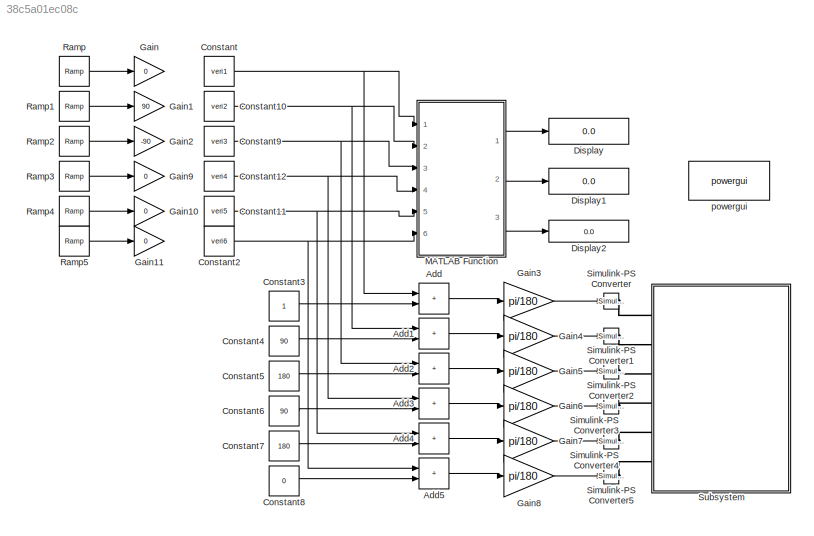
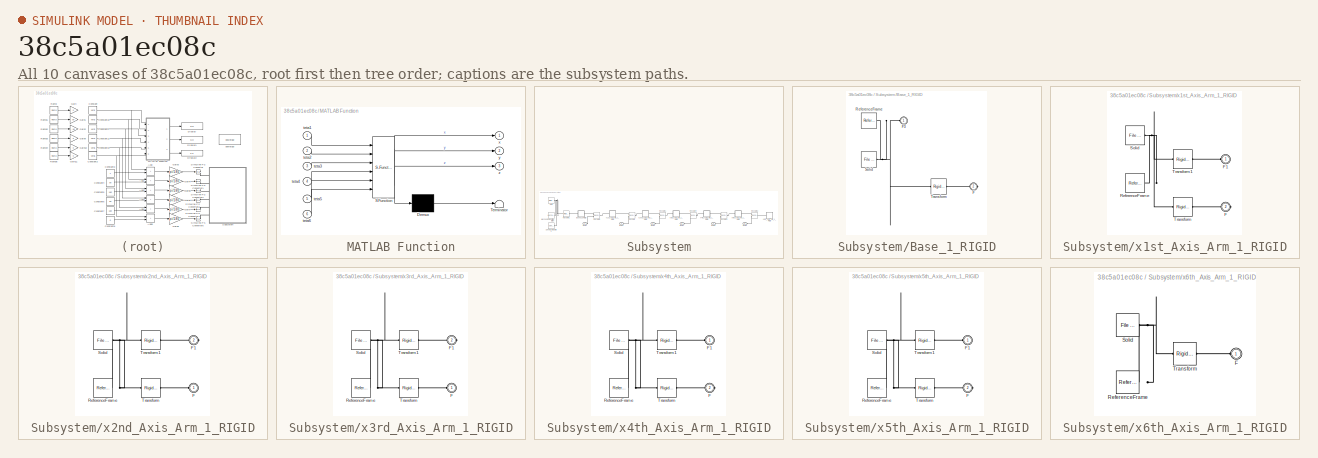
[diagram: thumbnail index - all 10 canvases of the model, root first then tree order]
MODEL slx_38c5a01ec08c
KIND model
CONFIG AbsTol = auto
CONFIG EnableMultiTasking = off
CONFIG FixedStep = auto
CONFIG MaxStep = auto
CONFIG MinStep = auto
CONFIG RelTol = 1e-3
CONFIG SampleTimeConstraint = Unconstrained
CONFIG SolverName = VariableStepAuto
CONFIG StartTime = 0.0
CONFIG StopTime = 0
WORKSPACE source: external: MATLAB File  (data not in archive)
BLOCK [Sum] Add
  IconShape = rectangular
  Ports = [2, 1]
BLOCK [Sum] Add1
  IconShape = rectangular
  Ports = [2, 1]
BLOCK [Sum] Add2
  IconShape = rectangular
  Ports = [2, 1]
BLOCK [Sum] Add3
  IconShape = rectangular
  Ports = [2, 1]
BLOCK [Sum] Add4
  IconShape = rectangular
  Ports = [2, 1]
BLOCK [Sum] Add5
  IconShape = rectangular
  Ports = [2, 1]
BLOCK [Constant] Constant
  Value = veri1
BLOCK [Constant] Constant10
  Value = veri2
BLOCK [Constant] Constant11
  Value = veri5
BLOCK [Constant] Constant12
  Value = veri4
BLOCK [Constant] Constant2
  Value = veri6
BLOCK [Constant] Constant3
BLOCK [Constant] Constant4
  Value = 90
BLOCK [Constant] Constant5
  Value = 180
BLOCK [Constant] Constant6
  Value = 90
BLOCK [Constant] Constant7
  Value = 180
BLOCK [Constant] Constant8
  Value = 0
BLOCK [Constant] Constant9
  Value = veri3
BLOCK [Display] Display
  Decimation = 1
  Ports = [1]
BLOCK [Display] Display1
  Decimation = 1
  Ports = [1]
BLOCK [Display] Display2
  Decimation = 1
  Ports = [1]
BLOCK [Gain] Gain
  Gain = 0
BLOCK [Gain] Gain1
  Gain = 90
BLOCK [Gain] Gain10
  Gain = 0
BLOCK [Gain] Gain11
  Gain = 0
BLOCK [Gain] Gain2
  Gain = -90
BLOCK [Gain] Gain3
  Gain = pi/180
BLOCK [Gain] Gain4
  Gain = pi/180
BLOCK [Gain] Gain5
  Gain = pi/180
BLOCK [Gain] Gain6
  Gain = pi/180
BLOCK [Gain] Gain7
  Gain = pi/180
BLOCK [Gain] Gain8
  Gain = pi/180
BLOCK [Gain] Gain9
  Gain = 0
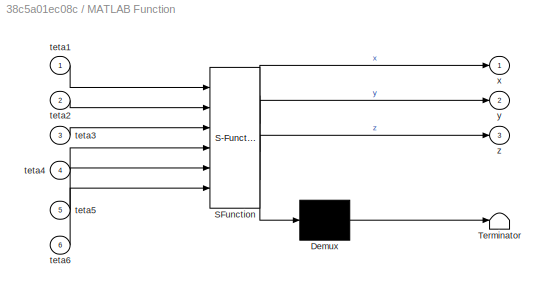
BLOCK [SubSystem] MATLAB Function
  ErrorFcn = Stateflow.Translate.translate
  PermitHierarchicalResolution = ExplicitOnly
  Ports = [6, 3]
  RequestExecContextInheritance = off
  SFBlockType = MATLAB Function
  TreatAsAtomicUnit = on
BLOCK [Demux] MATLAB Function/ Demux 
  Outputs = 1
  Ports = [1, 1]
BLOCK [S-Function] MATLAB Function/ SFunction 
  EnableBusSupport = on
  FunctionName = sf_sfun
  PortCounts = [6 4]
  Ports = [6, 4]
  SFcnIsStateOwnerBlock = off
  SFunctionDeploymentMode = off
  Tag = Stateflow S-Function 2
BLOCK [Terminator] MATLAB Function/ Terminator 
BLOCK [Inport] MATLAB Function/teta1
BLOCK [Inport] MATLAB Function/teta2
  Port = 2
BLOCK [Inport] MATLAB Function/teta3
  Port = 3
BLOCK [Inport] MATLAB Function/teta4
  Port = 4
BLOCK [Inport] MATLAB Function/teta5
  Port = 5
BLOCK [Inport] MATLAB Function/teta6
  Port = 6
BLOCK [Outport] MATLAB Function/x
BLOCK [Outport] MATLAB Function/y
  Port = 2
BLOCK [Outport] MATLAB Function/z
  Port = 3
BLOCK [Reference] Ramp  REF=simulink/Sources/Ramp
  Ports = [0, 1]
  SourceBlock = simulink/Sources/Ramp
  SourceProductBaseCode = SL
  SourceType = Ramp
BLOCK [Reference] Ramp1  REF=simulink/Sources/Ramp
  Ports = [0, 1]
  SourceBlock = simulink/Sources/Ramp
  SourceProductBaseCode = SL
  SourceType = Ramp
BLOCK [Reference] Ramp2  REF=simulink/Sources/Ramp
  Ports = [0, 1]
  SourceBlock = simulink/Sources/Ramp
  SourceProductBaseCode = SL
  SourceType = Ramp
BLOCK [Reference] Ramp3  REF=simulink/Sources/Ramp
  Ports = [0, 1]
  SourceBlock = simulink/Sources/Ramp
  SourceProductBaseCode = SL
  SourceType = Ramp
BLOCK [Reference] Ramp4  REF=simulink/Sources/Ramp
  Ports = [0, 1]
  SourceBlock = simulink/Sources/Ramp
  SourceProductBaseCode = SL
  SourceType = Ramp
BLOCK [Reference] Ramp5  REF=simulink/Sources/Ramp
  Ports = [0, 1]
  SourceBlock = simulink/Sources/Ramp
  SourceProductBaseCode = SL
  SourceType = Ramp
BLOCK [Reference] Simulink-PS Converter  REF=nesl_utility/Simulink-PS
Converter
  Ports = [1, 0, 0, 0, 0, 0, 1]
  SourceBlock = nesl_utility/Simulink-PS\nConverter
  SourceProductBaseCode = PW,SS
  SourceType = Simulink-PS\nConverter
BLOCK [Reference] Simulink-PS Converter1  REF=nesl_utility/Simulink-PS
Converter
  Ports = [1, 0, 0, 0, 0, 0, 1]
  SourceBlock = nesl_utility/Simulink-PS\nConverter
  SourceProductBaseCode = PW,SS
  SourceType = Simulink-PS\nConverter
BLOCK [Reference] Simulink-PS Converter2  REF=nesl_utility/Simulink-PS
Converter
  Ports = [1, 0, 0, 0, 0, 0, 1]
  SourceBlock = nesl_utility/Simulink-PS\nConverter
  SourceProductBaseCode = PW,SS
  SourceType = Simulink-PS\nConverter
BLOCK [Reference] Simulink-PS Converter3  REF=nesl_utility/Simulink-PS
Converter
  Ports = [1, 0, 0, 0, 0, 0, 1]
  SourceBlock = nesl_utility/Simulink-PS\nConverter
  SourceProductBaseCode = PW,SS
  SourceType = Simulink-PS\nConverter
BLOCK [Reference] Simulink-PS Converter4  REF=nesl_utility/Simulink-PS
Converter
  Ports = [1, 0, 0, 0, 0, 0, 1]
  SourceBlock = nesl_utility/Simulink-PS\nConverter
  SourceProductBaseCode = PW,SS
  SourceType = Simulink-PS\nConverter
BLOCK [Reference] Simulink-PS Converter5  REF=nesl_utility/Simulink-PS
Converter
  Ports = [1, 0, 0, 0, 0, 0, 1]
  SourceBlock = nesl_utility/Simulink-PS\nConverter
  SourceProductBaseCode = PW,SS
  SourceType = Simulink-PS\nConverter
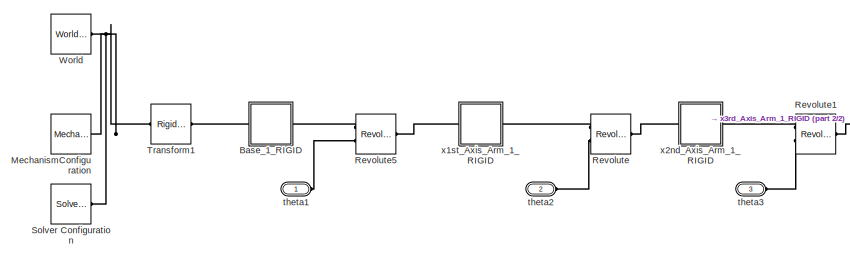
[diagram: Subsystem - part 1/2, left side, full height]
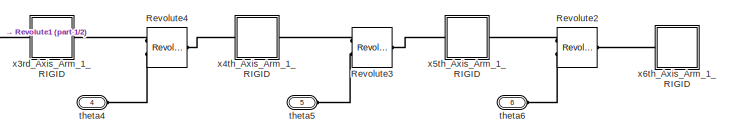
[diagram: Subsystem - part 2/2, middle right region]
BLOCK [SubSystem] Subsystem
  Ports = [0, 0, 0, 0, 0, 6]
  RequestExecContextInheritance = off
BLOCK [SubSystem] Subsystem/Base_1_RIGID
  Ports = [0, 0, 0, 0, 0, 1, 1]
  RequestExecContextInheritance = off
BLOCK [PMIOPort] Subsystem/Base_1_RIGID/F
  Port = 2
  Side = Right
BLOCK [PMIOPort] Subsystem/Base_1_RIGID/F3
  Side = Left
BLOCK [Reference] Subsystem/Base_1_RIGID/ReferenceFrame  REF=sm_lib/Frames and
Transforms/Reference
Frame
  Ports = [0, 0, 0, 0, 0, 0, 1]
  SourceBlock = sm_lib/Frames and\nTransforms/Reference\nFrame
  SourceProductBaseCode = MS
  SourceType = Reference\nFrame
BLOCK [Reference] Subsystem/Base_1_RIGID/Solid  REF=sm_lib/Body Elements/File Solid
  Ports = [0, 0, 0, 0, 0, 0, 1]
  SourceBlock = sm_lib/Body Elements/File Solid
  SourceProductBaseCode = MS
  SourceType = File Solid
BLOCK [Reference] Subsystem/Base_1_RIGID/Transform  REF=sm_lib/Frames and
Transforms/Rigid
Transform
  Ports = [0, 0, 0, 0, 0, 1, 1]
  SourceBlock = sm_lib/Frames and\nTransforms/Rigid\nTransform
  SourceProductBaseCode = MS
  SourceType = Rigid\nTransform
BLOCK [Reference] Subsystem/MechanismConfiguration  REF=sm_lib/Utilities/Mechanism
Configuration
  Ports = [0, 0, 0, 0, 0, 0, 1]
  SourceBlock = sm_lib/Utilities/Mechanism\nConfiguration
  SourceProductBaseCode = MS
  SourceType = Mechanism\nConfiguration
BLOCK [Reference] Subsystem/Revolute  REF=sm_lib/Joints/Revolute Joint
  Ports = [0, 0, 0, 0, 0, 2, 1]
  SourceBlock = sm_lib/Joints/Revolute Joint
  SourceProductBaseCode = MS
  SourceType = Revolute Joint
BLOCK [Reference] Subsystem/Revolute1  REF=sm_lib/Joints/Revolute Joint
  Ports = [0, 0, 0, 0, 0, 2, 1]
  SourceBlock = sm_lib/Joints/Revolute Joint
  SourceProductBaseCode = MS
  SourceType = Revolute Joint
BLOCK [Reference] Subsystem/Revolute2  REF=sm_lib/Joints/Revolute Joint
  Ports = [0, 0, 0, 0, 0, 2, 1]
  SourceBlock = sm_lib/Joints/Revolute Joint
  SourceProductBaseCode = MS
  SourceType = Revolute Joint
BLOCK [Reference] Subsystem/Revolute3  REF=sm_lib/Joints/Revolute Joint
  Ports = [0, 0, 0, 0, 0, 2, 1]
  SourceBlock = sm_lib/Joints/Revolute Joint
  SourceProductBaseCode = MS
  SourceType = Revolute Joint
BLOCK [Reference] Subsystem/Revolute4  REF=sm_lib/Joints/Revolute Joint
  Ports = [0, 0, 0, 0, 0, 2, 1]
  SourceBlock = sm_lib/Joints/Revolute Joint
  SourceProductBaseCode = MS
  SourceType = Revolute Joint
BLOCK [Reference] Subsystem/Revolute5  REF=sm_lib/Joints/Revolute Joint
  Ports = [0, 0, 0, 0, 0, 2, 1]
  SourceBlock = sm_lib/Joints/Revolute Joint
  SourceProductBaseCode = MS
  SourceType = Revolute Joint
BLOCK [Reference] Subsystem/Solver Configuration  REF=nesl_utility/Solver
Configuration
  Ports = [0, 0, 0, 0, 0, 0, 1]
  SourceBlock = nesl_utility/Solver\nConfiguration
  SourceProductBaseCode = PW,SS
  SourceType = Solver\nConfiguration
BLOCK [Reference] Subsystem/Transform1  REF=sm_lib/Frames and
Transforms/Rigid
Transform
  Ports = [0, 0, 0, 0, 0, 1, 1]
  SourceBlock = sm_lib/Frames and\nTransforms/Rigid\nTransform
  SourceProductBaseCode = MS
  SourceType = Rigid\nTransform
BLOCK [Reference] Subsystem/World  REF=sm_lib/Frames and
Transforms/World Frame
  Ports = [0, 0, 0, 0, 0, 0, 1]
  SourceBlock = sm_lib/Frames and\nTransforms/World Frame
  SourceProductBaseCode = MS
  SourceType = World Frame
BLOCK [PMIOPort] Subsystem/theta1
  Side = Left
BLOCK [PMIOPort] Subsystem/theta2
  Port = 2
  Side = Left
BLOCK [PMIOPort] Subsystem/theta3
  Port = 3
  Side = Left
BLOCK [PMIOPort] Subsystem/theta4
  Port = 4
  Side = Left
BLOCK [PMIOPort] Subsystem/theta5
  Port = 5
  Side = Left
BLOCK [PMIOPort] Subsystem/theta6
  Port = 6
  Side = Left
BLOCK [SubSystem] Subsystem/x1st_Axis_Arm_1_RIGID
  Ports = [0, 0, 0, 0, 0, 1, 1]
  RequestExecContextInheritance = off
BLOCK [PMIOPort] Subsystem/x1st_Axis_Arm_1_RIGID/F
  Port = 2
  Side = Right
BLOCK [PMIOPort] Subsystem/x1st_Axis_Arm_1_RIGID/F1
  Side = Left
BLOCK [Reference] Subsystem/x1st_Axis_Arm_1_RIGID/ReferenceFrame  REF=sm_lib/Frames and
Transforms/Reference
Frame
  Ports = [0, 0, 0, 0, 0, 0, 1]
  SourceBlock = sm_lib/Frames and\nTransforms/Reference\nFrame
  SourceProductBaseCode = MS
  SourceType = Reference\nFrame
BLOCK [Reference] Subsystem/x1st_Axis_Arm_1_RIGID/Solid  REF=sm_lib/Body Elements/File Solid
  Ports = [0, 0, 0, 0, 0, 0, 1]
  SourceBlock = sm_lib/Body Elements/File Solid
  SourceProductBaseCode = MS
  SourceType = File Solid
BLOCK [Reference] Subsystem/x1st_Axis_Arm_1_RIGID/Transform  REF=sm_lib/Frames and
Transforms/Rigid
Transform
  Ports = [0, 0, 0, 0, 0, 1, 1]
  SourceBlock = sm_lib/Frames and\nTransforms/Rigid\nTransform
  SourceProductBaseCode = MS
  SourceType = Rigid\nTransform
BLOCK [Reference] Subsystem/x1st_Axis_Arm_1_RIGID/Transform1  REF=sm_lib/Frames and
Transforms/Rigid
Transform
  Ports = [0, 0, 0, 0, 0, 1, 1]
  SourceBlock = sm_lib/Frames and\nTransforms/Rigid\nTransform
  SourceProductBaseCode = MS
  SourceType = Rigid\nTransform
BLOCK [SubSystem] Subsystem/x2nd_Axis_Arm_1_RIGID
  Ports = [0, 0, 0, 0, 0, 1, 1]
  RequestExecContextInheritance = off
BLOCK [PMIOPort] Subsystem/x2nd_Axis_Arm_1_RIGID/F
  Side = Left
BLOCK [PMIOPort] Subsystem/x2nd_Axis_Arm_1_RIGID/F1
  Port = 2
  Side = Right
BLOCK [Reference] Subsystem/x2nd_Axis_Arm_1_RIGID/ReferenceFrame  REF=sm_lib/Frames and
Transforms/Reference
Frame
  Ports = [0, 0, 0, 0, 0, 0, 1]
  SourceBlock = sm_lib/Frames and\nTransforms/Reference\nFrame
  SourceProductBaseCode = MS
  SourceType = Reference\nFrame
BLOCK [Reference] Subsystem/x2nd_Axis_Arm_1_RIGID/Solid  REF=sm_lib/Body Elements/File Solid
  Ports = [0, 0, 0, 0, 0, 0, 1]
  SourceBlock = sm_lib/Body Elements/File Solid
  SourceProductBaseCode = MS
  SourceType = File Solid
BLOCK [Reference] Subsystem/x2nd_Axis_Arm_1_RIGID/Transform  REF=sm_lib/Frames and
Transforms/Rigid
Transform
  Ports = [0, 0, 0, 0, 0, 1, 1]
  SourceBlock = sm_lib/Frames and\nTransforms/Rigid\nTransform
  SourceProductBaseCode = MS
  SourceType = Rigid\nTransform
BLOCK [Reference] Subsystem/x2nd_Axis_Arm_1_RIGID/Transform1  REF=sm_lib/Frames and
Transforms/Rigid
Transform
  Ports = [0, 0, 0, 0, 0, 1, 1]
  SourceBlock = sm_lib/Frames and\nTransforms/Rigid\nTransform
  SourceProductBaseCode = MS
  SourceType = Rigid\nTransform
BLOCK [SubSystem] Subsystem/x3rd_Axis_Arm_1_RIGID
  Ports = [0, 0, 0, 0, 0, 1, 1]
  RequestExecContextInheritance = off
BLOCK [PMIOPort] Subsystem/x3rd_Axis_Arm_1_RIGID/F
  Side = Left
BLOCK [PMIOPort] Subsystem/x3rd_Axis_Arm_1_RIGID/F1
  Port = 2
  Side = Right
BLOCK [Reference] Subsystem/x3rd_Axis_Arm_1_RIGID/ReferenceFrame  REF=sm_lib/Frames and
Transforms/Reference
Frame
  Ports = [0, 0, 0, 0, 0, 0, 1]
  SourceBlock = sm_lib/Frames and\nTransforms/Reference\nFrame
  SourceProductBaseCode = MS
  SourceType = Reference\nFrame
BLOCK [Reference] Subsystem/x3rd_Axis_Arm_1_RIGID/Solid  REF=sm_lib/Body Elements/File Solid
  Ports = [0, 0, 0, 0, 0, 0, 1]
  SourceBlock = sm_lib/Body Elements/File Solid
  SourceProductBaseCode = MS
  SourceType = File Solid
BLOCK [Reference] Subsystem/x3rd_Axis_Arm_1_RIGID/Transform  REF=sm_lib/Frames and
Transforms/Rigid
Transform
  Ports = [0, 0, 0, 0, 0, 1, 1]
  SourceBlock = sm_lib/Frames and\nTransforms/Rigid\nTransform
  SourceProductBaseCode = MS
  SourceType = Rigid\nTransform
BLOCK [Reference] Subsystem/x3rd_Axis_Arm_1_RIGID/Transform1  REF=sm_lib/Frames and
Transforms/Rigid
Transform
  Ports = [0, 0, 0, 0, 0, 1, 1]
  SourceBlock = sm_lib/Frames and\nTransforms/Rigid\nTransform
  SourceProductBaseCode = MS
  SourceType = Rigid\nTransform
BLOCK [SubSystem] Subsystem/x4th_Axis_Arm_1_RIGID
  Ports = [0, 0, 0, 0, 0, 1, 1]
  RequestExecContextInheritance = off
BLOCK [PMIOPort] Subsystem/x4th_Axis_Arm_1_RIGID/F
  Port = 2
  Side = Right
BLOCK [PMIOPort] Subsystem/x4th_Axis_Arm_1_RIGID/F1
  Side = Left
BLOCK [Reference] Subsystem/x4th_Axis_Arm_1_RIGID/ReferenceFrame  REF=sm_lib/Frames and
Transforms/Reference
Frame
  Ports = [0, 0, 0, 0, 0, 0, 1]
  SourceBlock = sm_lib/Frames and\nTransforms/Reference\nFrame
  SourceProductBaseCode = MS
  SourceType = Reference\nFrame
BLOCK [Reference] Subsystem/x4th_Axis_Arm_1_RIGID/Solid  REF=sm_lib/Body Elements/File Solid
  Ports = [0, 0, 0, 0, 0, 0, 1]
  SourceBlock = sm_lib/Body Elements/File Solid
  SourceProductBaseCode = MS
  SourceType = File Solid
BLOCK [Reference] Subsystem/x4th_Axis_Arm_1_RIGID/Transform  REF=sm_lib/Frames and
Transforms/Rigid
Transform
  Ports = [0, 0, 0, 0, 0, 1, 1]
  SourceBlock = sm_lib/Frames and\nTransforms/Rigid\nTransform
  SourceProductBaseCode = MS
  SourceType = Rigid\nTransform
BLOCK [Reference] Subsystem/x4th_Axis_Arm_1_RIGID/Transform1  REF=sm_lib/Frames and
Transforms/Rigid
Transform
  Ports = [0, 0, 0, 0, 0, 1, 1]
  SourceBlock = sm_lib/Frames and\nTransforms/Rigid\nTransform
  SourceProductBaseCode = MS
  SourceType = Rigid\nTransform
BLOCK [SubSystem] Subsystem/x5th_Axis_Arm_1_RIGID
  Ports = [0, 0, 0, 0, 0, 1, 1]
  RequestExecContextInheritance = off
BLOCK [PMIOPort] Subsystem/x5th_Axis_Arm_1_RIGID/F
  Port = 2
  Side = Right
BLOCK [PMIOPort] Subsystem/x5th_Axis_Arm_1_RIGID/F1
  Side = Left
BLOCK [Reference] Subsystem/x5th_Axis_Arm_1_RIGID/ReferenceFrame  REF=sm_lib/Frames and
Transforms/Reference
Frame
  Ports = [0, 0, 0, 0, 0, 0, 1]
  SourceBlock = sm_lib/Frames and\nTransforms/Reference\nFrame
  SourceProductBaseCode = MS
  SourceType = Reference\nFrame
BLOCK [Reference] Subsystem/x5th_Axis_Arm_1_RIGID/Solid  REF=sm_lib/Body Elements/File Solid
  Ports = [0, 0, 0, 0, 0, 0, 1]
  SourceBlock = sm_lib/Body Elements/File Solid
  SourceProductBaseCode = MS
  SourceType = File Solid
BLOCK [Reference] Subsystem/x5th_Axis_Arm_1_RIGID/Transform  REF=sm_lib/Frames and
Transforms/Rigid
Transform
  Ports = [0, 0, 0, 0, 0, 1, 1]
  SourceBlock = sm_lib/Frames and\nTransforms/Rigid\nTransform
  SourceProductBaseCode = MS
  SourceType = Rigid\nTransform
BLOCK [Reference] Subsystem/x5th_Axis_Arm_1_RIGID/Transform1  REF=sm_lib/Frames and
Transforms/Rigid
Transform
  Ports = [0, 0, 0, 0, 0, 1, 1]
  SourceBlock = sm_lib/Frames and\nTransforms/Rigid\nTransform
  SourceProductBaseCode = MS
  SourceType = Rigid\nTransform
BLOCK [SubSystem] Subsystem/x6th_Axis_Arm_1_RIGID
  Ports = [0, 0, 0, 0, 0, 1]
  RequestExecContextInheritance = off
BLOCK [PMIOPort] Subsystem/x6th_Axis_Arm_1_RIGID/F
  Side = Left
BLOCK [Reference] Subsystem/x6th_Axis_Arm_1_RIGID/ReferenceFrame  REF=sm_lib/Frames and
Transforms/Reference
Frame
  Ports = [0, 0, 0, 0, 0, 0, 1]
  SourceBlock = sm_lib/Frames and\nTransforms/Reference\nFrame
  SourceProductBaseCode = MS
  SourceType = Reference\nFrame
BLOCK [Reference] Subsystem/x6th_Axis_Arm_1_RIGID/Solid  REF=sm_lib/Body Elements/File Solid
  Ports = [0, 0, 0, 0, 0, 0, 1]
  SourceBlock = sm_lib/Body Elements/File Solid
  SourceProductBaseCode = MS
  SourceType = File Solid
BLOCK [Reference] Subsystem/x6th_Axis_Arm_1_RIGID/Transform  REF=sm_lib/Frames and
Transforms/Rigid
Transform
  Ports = [0, 0, 0, 0, 0, 1, 1]
  SourceBlock = sm_lib/Frames and\nTransforms/Rigid\nTransform
  SourceProductBaseCode = MS
  SourceType = Rigid\nTransform
BLOCK [Reference] powergui  REF=spspowerguiLib/powergui
  Ports = []
  Priority = 1
  SourceBlock = spspowerguiLib/powergui
  SourceProductBaseCode = PS
  SourceType = PSB option menu block
LINE Add1:1 -> Gain4:1
LINE Add2:1 -> Gain5:1
LINE Add3:1 -> Gain6:1
LINE Add4:1 -> Gain7:1
LINE Add5:1 -> Gain8:1
LINE Add:1 -> Gain3:1
NET Constant10:1 -> Add1:1, MATLAB Function:2
NET Constant11:1 -> Add4:1, MATLAB Function:5
NET Constant12:1 -> Add3:1, MATLAB Function:4
NET Constant2:1 -> Add5:1, MATLAB Function:6
LINE Constant3:1 -> Add:2
LINE Constant4:1 -> Add1:2
LINE Constant5:1 -> Add2:2
LINE Constant6:1 -> Add3:2
LINE Constant7:1 -> Add4:2
LINE Constant8:1 -> Add5:2
NET Constant9:1 -> Add2:1, MATLAB Function:3
NET Constant:1 -> Add:1, MATLAB Function:1
LINE Gain3:1 -> Simulink-PS Converter:1
LINE Gain4:1 -> Simulink-PS Converter1:1
LINE Gain5:1 -> Simulink-PS Converter2:1
LINE Gain6:1 -> Simulink-PS Converter3:1
LINE Gain7:1 -> Simulink-PS Converter4:1
LINE Gain8:1 -> Simulink-PS Converter5:1
LINE MATLAB Function:1 -> Display:1
LINE MATLAB Function:2 -> Display1:1
LINE MATLAB Function:3 -> Display2:1
LINE Ramp1:1 -> Gain1:1
LINE Ramp2:1 -> Gain2:1
LINE Ramp3:1 -> Gain9:1
LINE Ramp4:1 -> Gain10:1
LINE Ramp5:1 -> Gain11:1
LINE Ramp:1 -> Gain:1
PLINE Simulink-PS Converter1:RConn1 -- Subsystem:LConn2
PLINE Simulink-PS Converter2:RConn1 -- Subsystem:LConn3
PLINE Simulink-PS Converter3:RConn1 -- Subsystem:LConn4
PLINE Simulink-PS Converter4:RConn1 -- Subsystem:LConn5
PLINE Simulink-PS Converter5:RConn1 -- Subsystem:LConn6
PLINE Simulink-PS Converter:RConn1 -- Subsystem:LConn1
PNET net1: Subsystem/Base_1_RIGID/F3:RConn1 -- Subsystem/Base_1_RIGID/ReferenceFrame:RConn1 -- Subsystem/Base_1_RIGID/Solid:RConn1 -- Subsystem/Base_1_RIGID/Transform:LConn1
PLINE Subsystem/Base_1_RIGID/F:RConn1 -- Subsystem/Base_1_RIGID/Transform:RConn1
PLINE Subsystem/Base_1_RIGID:LConn1 -- Subsystem/Transform1:RConn1
PLINE Subsystem/Base_1_RIGID:RConn1 -- Subsystem/Revolute5:LConn1
PNET net2: Subsystem/MechanismConfiguration:RConn1 -- Subsystem/Solver Configuration:RConn1 -- Subsystem/Transform1:LConn1 -- Subsystem/World:RConn1
PLINE Subsystem/Revolute1:LConn1 -- Subsystem/x2nd_Axis_Arm_1_RIGID:RConn1
PLINE Subsystem/Revolute1:LConn2 -- Subsystem/theta3:RConn1
PLINE Subsystem/Revolute1:RConn1 -- Subsystem/x3rd_Axis_Arm_1_RIGID:LConn1
PLINE Subsystem/Revolute2:LConn1 -- Subsystem/x5th_Axis_Arm_1_RIGID:RConn1
PLINE Subsystem/Revolute2:LConn2 -- Subsystem/theta6:RConn1
PLINE Subsystem/Revolute2:RConn1 -- Subsystem/x6th_Axis_Arm_1_RIGID:LConn1
PLINE Subsystem/Revolute3:LConn1 -- Subsystem/x4th_Axis_Arm_1_RIGID:RConn1
PLINE Subsystem/Revolute3:LConn2 -- Subsystem/theta5:RConn1
PLINE Subsystem/Revolute3:RConn1 -- Subsystem/x5th_Axis_Arm_1_RIGID:LConn1
PLINE Subsystem/Revolute4:LConn1 -- Subsystem/x3rd_Axis_Arm_1_RIGID:RConn1
PLINE Subsystem/Revolute4:LConn2 -- Subsystem/theta4:RConn1
PLINE Subsystem/Revolute4:RConn1 -- Subsystem/x4th_Axis_Arm_1_RIGID:LConn1
PLINE Subsystem/Revolute5:LConn2 -- Subsystem/theta1:RConn1
PLINE Subsystem/Revolute5:RConn1 -- Subsystem/x1st_Axis_Arm_1_RIGID:LConn1
PLINE Subsystem/Revolute:LConn1 -- Subsystem/x1st_Axis_Arm_1_RIGID:RConn1
PLINE Subsystem/Revolute:LConn2 -- Subsystem/theta2:RConn1
PLINE Subsystem/Revolute:RConn1 -- Subsystem/x2nd_Axis_Arm_1_RIGID:LConn1
PLINE Subsystem/x1st_Axis_Arm_1_RIGID/F1:RConn1 -- Subsystem/x1st_Axis_Arm_1_RIGID/Transform1:RConn1
PLINE Subsystem/x1st_Axis_Arm_1_RIGID/F:RConn1 -- Subsystem/x1st_Axis_Arm_1_RIGID/Transform:RConn1
PNET net3: Subsystem/x1st_Axis_Arm_1_RIGID/ReferenceFrame:RConn1 -- Subsystem/x1st_Axis_Arm_1_RIGID/Solid:RConn1 -- Subsystem/x1st_Axis_Arm_1_RIGID/Transform1:LConn1 -- Subsystem/x1st_Axis_Arm_1_RIGID/Transform:LConn1
PLINE Subsystem/x2nd_Axis_Arm_1_RIGID/F1:RConn1 -- Subsystem/x2nd_Axis_Arm_1_RIGID/Transform1:RConn1
PLINE Subsystem/x2nd_Axis_Arm_1_RIGID/F:RConn1 -- Subsystem/x2nd_Axis_Arm_1_RIGID/Transform:RConn1
PNET net4: Subsystem/x2nd_Axis_Arm_1_RIGID/ReferenceFrame:RConn1 -- Subsystem/x2nd_Axis_Arm_1_RIGID/Solid:RConn1 -- Subsystem/x2nd_Axis_Arm_1_RIGID/Transform1:LConn1 -- Subsystem/x2nd_Axis_Arm_1_RIGID/Transform:LConn1
PLINE Subsystem/x3rd_Axis_Arm_1_RIGID/F1:RConn1 -- Subsystem/x3rd_Axis_Arm_1_RIGID/Transform1:RConn1
PLINE Subsystem/x3rd_Axis_Arm_1_RIGID/F:RConn1 -- Subsystem/x3rd_Axis_Arm_1_RIGID/Transform:RConn1
PNET net5: Subsystem/x3rd_Axis_Arm_1_RIGID/ReferenceFrame:RConn1 -- Subsystem/x3rd_Axis_Arm_1_RIGID/Solid:RConn1 -- Subsystem/x3rd_Axis_Arm_1_RIGID/Transform1:LConn1 -- Subsystem/x3rd_Axis_Arm_1_RIGID/Transform:LConn1
PLINE Subsystem/x4th_Axis_Arm_1_RIGID/F1:RConn1 -- Subsystem/x4th_Axis_Arm_1_RIGID/Transform1:RConn1
PLINE Subsystem/x4th_Axis_Arm_1_RIGID/F:RConn1 -- Subsystem/x4th_Axis_Arm_1_RIGID/Transform:RConn1
PNET net6: Subsystem/x4th_Axis_Arm_1_RIGID/ReferenceFrame:RConn1 -- Subsystem/x4th_Axis_Arm_1_RIGID/Solid:RConn1 -- Subsystem/x4th_Axis_Arm_1_RIGID/Transform1:LConn1 -- Subsystem/x4th_Axis_Arm_1_RIGID/Transform:LConn1
PLINE Subsystem/x5th_Axis_Arm_1_RIGID/F1:RConn1 -- Subsystem/x5th_Axis_Arm_1_RIGID/Transform1:RConn1
PLINE Subsystem/x5th_Axis_Arm_1_RIGID/F:RConn1 -- Subsystem/x5th_Axis_Arm_1_RIGID/Transform:RConn1
PNET net7: Subsystem/x5th_Axis_Arm_1_RIGID/ReferenceFrame:RConn1 -- Subsystem/x5th_Axis_Arm_1_RIGID/Solid:RConn1 -- Subsystem/x5th_Axis_Arm_1_RIGID/Transform1:LConn1 -- Subsystem/x5th_Axis_Arm_1_RIGID/Transform:LConn1
PLINE Subsystem/x6th_Axis_Arm_1_RIGID/F:RConn1 -- Subsystem/x6th_Axis_Arm_1_RIGID/Transform:RConn1
PNET net8: Subsystem/x6th_Axis_Arm_1_RIGID/ReferenceFrame:RConn1 -- Subsystem/x6th_Axis_Arm_1_RIGID/Solid:RConn1 -- Subsystem/x6th_Axis_Arm_1_RIGID/Transform:LConn1
note: NET lines group one-source signal fan-out (src -> all destinations, sorted); 1:1 wires keep LINE; PNET lines group multi-terminal physical nets as a canonical sorted terminal list (undirected conserving connections); 2-terminal nets keep the pairwise PLINE form
CHART MATLAB Function states=1 transitions=1
  STATE_LABEL 'eML_blk_kernel()'
  STATE_LABEL 'SCRIPT:\nfunction [x,y,z] = fcn(teta1, teta2 ,teta3 ,teta4 ,teta5 ,teta6)\n\nteta_1=deg2rad(teta1);\nteta_2=deg2rad(teta2);\nteta_3=deg2rad(teta3);\nteta_4=deg2rad(teta4);\nteta_5=deg2rad(teta5);\nteta_6=deg2rad(teta6);\n\nalpha1=   0;\nalpha2=   -90;\nalpha3=   0;\nalpha4=   -90;\nalpha5=   90;\nalpha6=   -90;\n\nalpha_1=deg2rad(alpha1);\nalpha_2=deg2rad(alpha2);\nalpha_3=deg2rad(alpha3);\nalpha_4=deg2rad(alpha4);\na...<+3177ch>'
CHART  states=0 transitions=0
